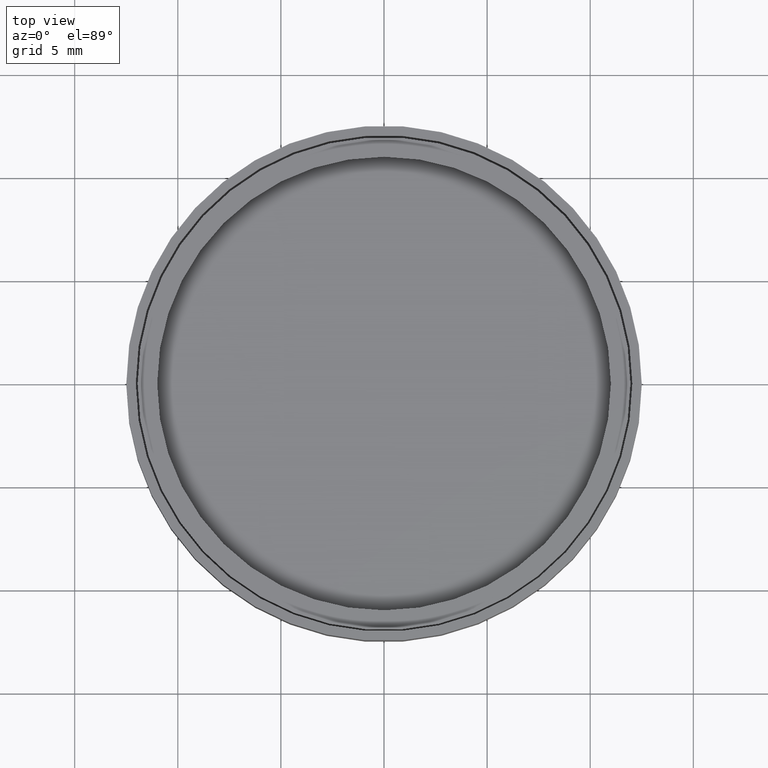
[diagram: clean part render]
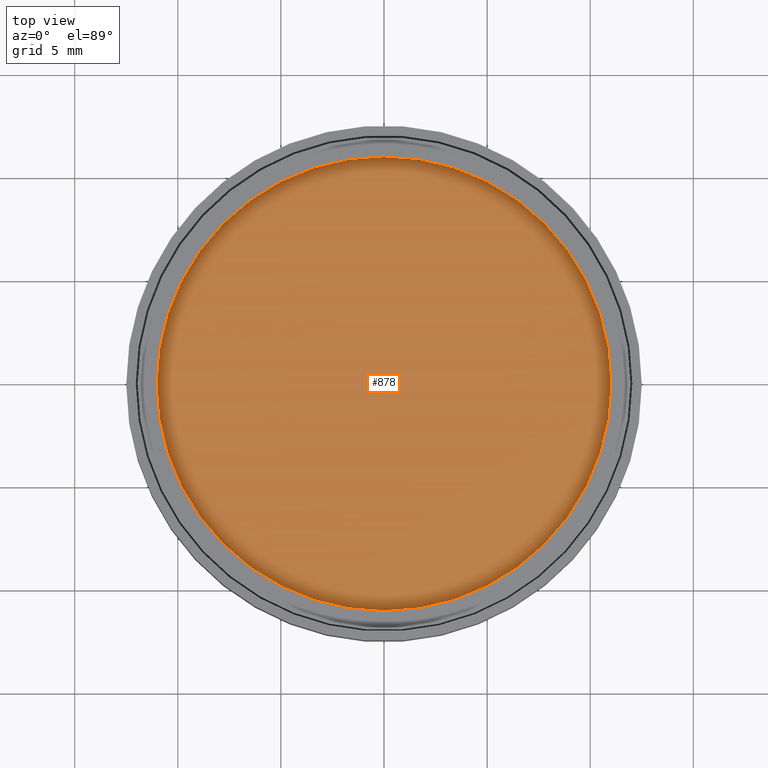
[diagram: same view with one face highlighted and labeled with its STEP entity id]
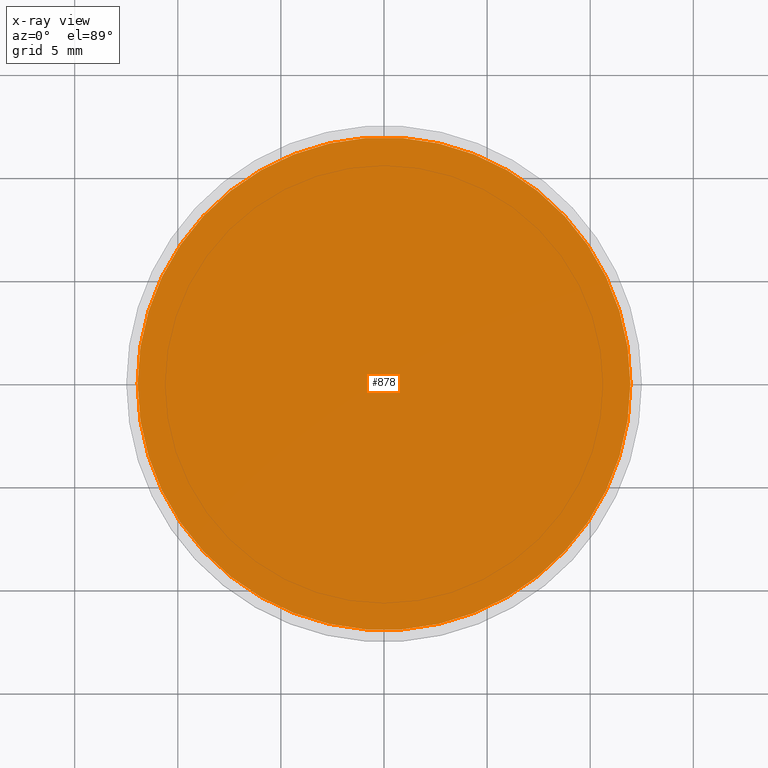
[diagram: x-ray of the same camera — body ghosted, the highlighted face saturated]
A machine part, top view. The second image highlights one B-rep face of the part: STEP entity #878.
The next image is the same camera in x-ray: the body ghosted, the highlighted face saturated — about 0% of this face is hidden behind the body in this view.
In plain terms, the highlighted planar face has unit normal (0, 0, 1).
Its self-contained STEP definition (entity closure, byte-faithful):
#25 = CARTESIAN_POINT ( 'NONE',  ( 0.0000000000000000000, -4.665750208063244300E-017, 2.381000000000001100 ) ) ;
#119 = DIRECTION ( 'NONE',  ( 1.000000000000000000, 0.0000000000000000000, -0.0000000000000000000 ) ) ;
#171 = VERTEX_POINT ( 'NONE', #915 ) ;
#269 = FACE_OUTER_BOUND ( 'NONE', #753, .T. ) ;
#344 = AXIS2_PLACEMENT_3D ( 'NONE', #844, #600, #119 ) ;
#362 = DIRECTION ( 'NONE',  ( 1.000000000000000000, 0.0000000000000000000, 0.0000000000000000000 ) ) ;
#399 = EDGE_CURVE ( 'NONE', #171, #614, #694, .T. ) ;
#523 = CARTESIAN_POINT ( 'NONE',  ( 0.0000000000000000000, -4.665750208063244300E-017, 2.381000000000001100 ) ) ;
#526 = CIRCLE ( 'NONE', #738, 11.94999999999999900 ) ;
#600 = DIRECTION ( 'NONE',  ( 0.0000000000000000000, 0.0000000000000000000, 1.000000000000000000 ) ) ;
#614 = VERTEX_POINT ( 'NONE', #757 ) ;
#640 = AXIS2_PLACEMENT_3D ( 'NONE', #25, #662, #829 ) ;
#662 = DIRECTION ( 'NONE',  ( -0.0000000000000000000, -0.0000000000000000000, -1.000000000000000000 ) ) ;
#680 = PLANE ( 'NONE',  #344 ) ;
#686 = ORIENTED_EDGE ( 'NONE', *, *, #928, .F. ) ;
#694 = CIRCLE ( 'NONE', #640, 11.94999999999999900 ) ;
#738 = AXIS2_PLACEMENT_3D ( 'NONE', #523, #764, #362 ) ;
#753 = EDGE_LOOP ( 'NONE', ( #780, #686 ) ) ;
#757 = CARTESIAN_POINT ( 'NONE',  ( -11.94999999999999900, 1.416795422900454500E-015, 2.381000000000001100 ) ) ;
#764 = DIRECTION ( 'NONE',  ( -0.0000000000000000000, -0.0000000000000000000, -1.000000000000000000 ) ) ;
#780 = ORIENTED_EDGE ( 'NONE', *, *, #399, .F. ) ;
#829 = DIRECTION ( 'NONE',  ( 1.000000000000000000, 0.0000000000000000000, 0.0000000000000000000 ) ) ;
#844 = CARTESIAN_POINT ( 'NONE',  ( 0.0000000000000000000, -4.665750208063244300E-017, 2.381000000000001100 ) ) ;
#878 = ADVANCED_FACE ( 'NONE', ( #269 ), #680, .T. ) ;
#915 = CARTESIAN_POINT ( 'NONE',  ( 11.94999999999999900, -4.665750208063244300E-017, 2.381000000000001100 ) ) ;
#928 = EDGE_CURVE ( 'NONE', #614, #171, #526, .T. ) ;